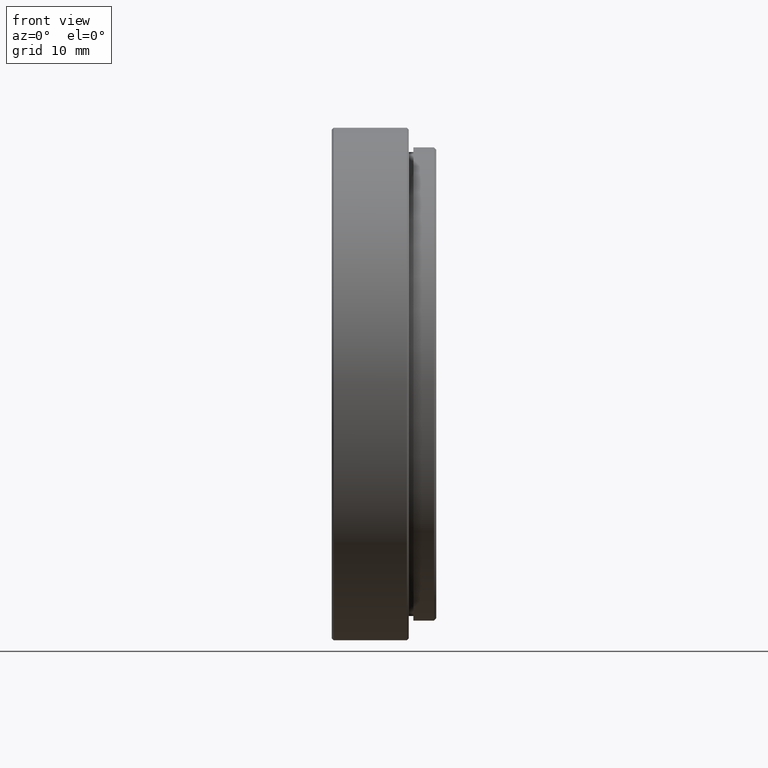
[diagram: clean part render]
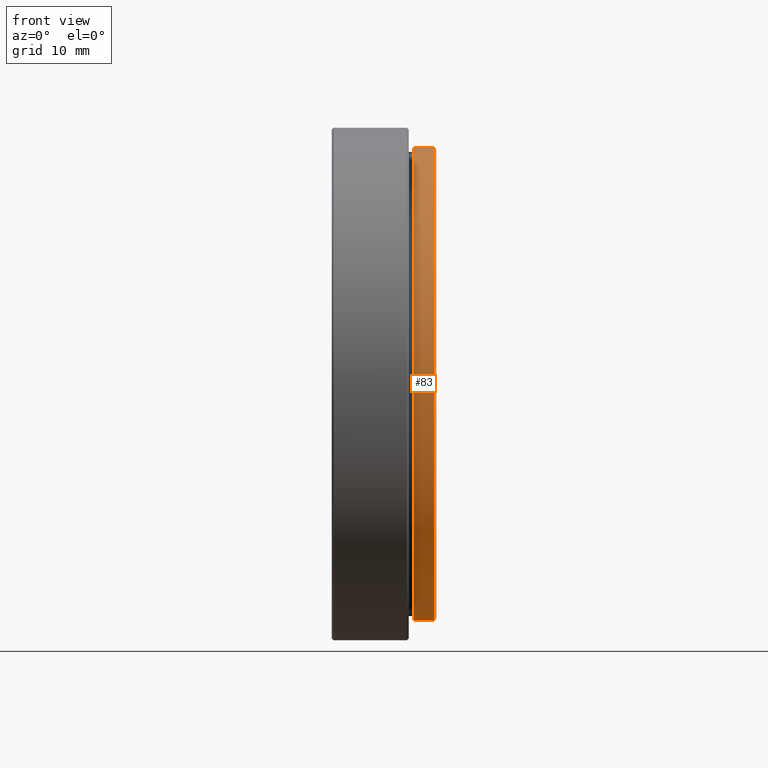
[diagram: same view with one face highlighted and labeled with its STEP entity id]
A machine part, front view. The second image highlights one B-rep face of the part: STEP entity #83.
In plain terms, the highlighted cylindrical surface (partial cylindrical patch) has radius 25.8 mm, axis along (-1, -0, -0).
Its self-contained STEP definition (entity closure, byte-faithful):
#64 = EDGE_CURVE ( 'NONE', #769, #1585, #940, .T. ) ;
#66 = FACE_OUTER_BOUND ( 'NONE', #421, .T. ) ;
#83 = ADVANCED_FACE ( 'NONE', ( #66 ), #979, .T. ) ;
#106 = CARTESIAN_POINT ( 'NONE',  ( 4.025999999999982926, -20.10857142857141966, 0.000000000000000000 ) ) ;
#145 = CARTESIAN_POINT ( 'NONE',  ( 6.525999999999982926, -20.10857142857141966, 0.000000000000000000 ) ) ;
#174 = EDGE_CURVE ( 'NONE', #1513, #769, #434, .T. ) ;
#177 = CARTESIAN_POINT ( 'NONE',  ( 6.525999999999982926, -20.10857142857141966, 25.80000000000000426 ) ) ;
#320 = VERTEX_POINT ( 'NONE', #1588 ) ;
#350 = CARTESIAN_POINT ( 'NONE',  ( 6.275999999999982926, -20.10857142857141611, -25.80000000000000426 ) ) ;
#421 = EDGE_LOOP ( 'NONE', ( #462, #1365, #1422, #551 ) ) ;
#434 = CIRCLE ( 'NONE', #542, 25.80000000000000426 ) ;
#462 = ORIENTED_EDGE ( 'NONE', *, *, #1539, .F. ) ;
#495 = DIRECTION ( 'NONE',  ( 0.000000000000000000, 0.000000000000000000, -1.000000000000000000 ) ) ;
#528 = CIRCLE ( 'NONE', #1249, 25.80000000000000426 ) ;
#542 = AXIS2_PLACEMENT_3D ( 'NONE', #1557, #1306, #552 ) ;
#547 = EDGE_CURVE ( 'NONE', #1585, #320, #528, .T. ) ;
#551 = ORIENTED_EDGE ( 'NONE', *, *, #547, .T. ) ;
#552 = DIRECTION ( 'NONE',  ( 0.000000000000000000, 0.000000000000000000, -1.000000000000000000 ) ) ;
#557 = DIRECTION ( 'NONE',  ( -1.000000000000000000, -0.000000000000000000, -0.000000000000000000 ) ) ;
#571 = DIRECTION ( 'NONE',  ( 0.000000000000000000, 0.000000000000000000, 1.000000000000000000 ) ) ;
#631 = DIRECTION ( 'NONE',  ( 1.000000000000000000, 0.000000000000000000, 0.000000000000000000 ) ) ;
#769 = VERTEX_POINT ( 'NONE', #1307 ) ;
#843 = CARTESIAN_POINT ( 'NONE',  ( 6.525999999999982926, -20.10857142857141611, -25.80000000000000426 ) ) ;
#940 = LINE ( 'NONE', #177, #1509 ) ;
#979 = CYLINDRICAL_SURFACE ( 'NONE', #1113, 25.80000000000000426 ) ;
#1113 = AXIS2_PLACEMENT_3D ( 'NONE', #145, #557, #571 ) ;
#1213 = LINE ( 'NONE', #843, #1471 ) ;
#1249 = AXIS2_PLACEMENT_3D ( 'NONE', #106, #631, #495 ) ;
#1306 = DIRECTION ( 'NONE',  ( -1.000000000000000000, 0.000000000000000000, 0.000000000000000000 ) ) ;
#1307 = CARTESIAN_POINT ( 'NONE',  ( 6.275999999999982926, -20.10857142857141966, 25.80000000000000426 ) ) ;
#1361 = CARTESIAN_POINT ( 'NONE',  ( 4.025999999999982926, -20.10857142857141966, 25.80000000000000426 ) ) ;
#1365 = ORIENTED_EDGE ( 'NONE', *, *, #174, .T. ) ;
#1422 = ORIENTED_EDGE ( 'NONE', *, *, #64, .T. ) ;
#1471 = VECTOR ( 'NONE', #1488, 1000.000000000000000 ) ;
#1488 = DIRECTION ( 'NONE',  ( -1.000000000000000000, -0.000000000000000000, -0.000000000000000000 ) ) ;
#1509 = VECTOR ( 'NONE', #1570, 1000.000000000000000 ) ;
#1513 = VERTEX_POINT ( 'NONE', #350 ) ;
#1539 = EDGE_CURVE ( 'NONE', #1513, #320, #1213, .T. ) ;
#1557 = CARTESIAN_POINT ( 'NONE',  ( 6.275999999999982926, -20.10857142857141966, 0.000000000000000000 ) ) ;
#1570 = DIRECTION ( 'NONE',  ( -1.000000000000000000, -0.000000000000000000, -0.000000000000000000 ) ) ;
#1585 = VERTEX_POINT ( 'NONE', #1361 ) ;
#1588 = CARTESIAN_POINT ( 'NONE',  ( 4.025999999999982926, -20.10857142857141611, -25.80000000000000426 ) ) ;